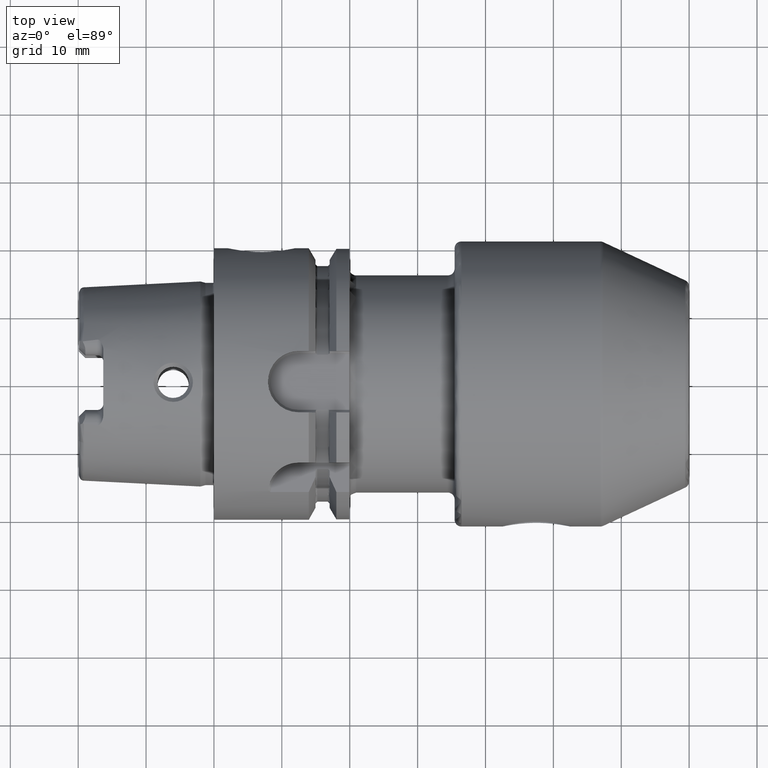
[diagram: clean part render]
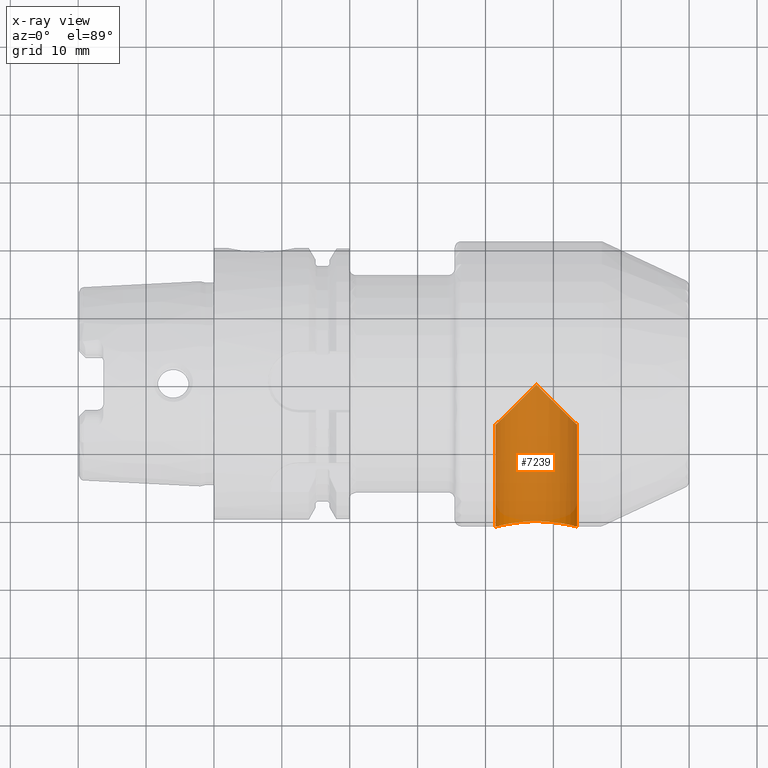
[diagram: x-ray — body ghosted, one internal face saturated and labeled with its STEP entity id]
A machine part, top view, then the same camera in x-ray: the body is ghosted and one INTERNAL B-rep face — a face not visible from any outside direction — is saturated and labeled: STEP entity #7239.
In plain terms, the highlighted cylindrical surface (partial cylindrical patch) has radius 6 mm, axis along (0, -1, 0).
Its self-contained STEP definition (entity closure, byte-faithful):
#7088=CARTESIAN_POINT('',(4.15E1,-6.E0,0.E0));
#7089=CARTESIAN_POINT('',(4.15E1,-6.E0,-2.161451631541E-1));
#7090=CARTESIAN_POINT('',(4.152340133109E1,-5.976598668909E0,
-6.497920179147E-1));
#7091=CARTESIAN_POINT('',(4.162932441133E1,-5.870675588672E0,
-1.295592283440E0));
#7092=CARTESIAN_POINT('',(4.180652120883E1,-5.693478791165E0,
-1.931991815312E0));
#7093=CARTESIAN_POINT('',(4.206045653351E1,-5.439543466488E0,
-2.564011144853E0));
#7094=CARTESIAN_POINT('',(4.240420756610E1,-5.095792433904E0,
-3.195845366612E0));
#7095=CARTESIAN_POINT('',(4.284260782880E1,-4.657392171204E0,
-3.808890337956E0));
#7096=CARTESIAN_POINT('',(4.338304146034E1,-4.116958539658E0,
-4.389750921808E0));
#7097=CARTESIAN_POINT('',(4.402603384219E1,-3.473966157811E0,
-4.916697068376E0));
#7098=CARTESIAN_POINT('',(4.477543681185E1,-2.724563188146E0,
-5.370672820025E0));
#7099=CARTESIAN_POINT('',(4.562484741143E1,-1.875152588572E0,
-5.725725182445E0));
#7100=CARTESIAN_POINT('',(4.656149134178E1,-9.385086582171E-1,
-5.951741638269E0));
#7101=CARTESIAN_POINT('',(4.718569922813E1,-3.143007718668E-1,-6.E0));
#7102=CARTESIAN_POINT('',(4.75E1,0.E0,-6.E0));
#7104=CARTESIAN_POINT('',(4.75E1,0.E0,-6.E0));
#7105=CARTESIAN_POINT('',(4.781425196511E1,-3.142519651054E-1,-6.E0));
#7106=CARTESIAN_POINT('',(4.843839180650E1,-9.383918065036E-1,
-5.951762133287E0));
#7107=CARTESIAN_POINT('',(4.937514506790E1,-1.875145067898E0,
-5.725731005531E0));
#7108=CARTESIAN_POINT('',(5.022450156297E1,-2.724501562965E0,
-5.370697060344E0));
#7109=CARTESIAN_POINT('',(5.097382171810E1,-3.473821718098E0,
-4.916795803800E0));
#7110=CARTESIAN_POINT('',(5.161682019903E1,-4.116820199027E0,
-4.389879787777E0));
#7111=CARTESIAN_POINT('',(5.215726125677E1,-4.657261256768E0,
-3.809051692539E0));
#7112=CARTESIAN_POINT('',(5.259571436474E1,-5.095714364742E0,
-3.195973951291E0));
#7113=CARTESIAN_POINT('',(5.293947464148E1,-5.439474641483E0,
-2.564150110717E0));
#7114=CARTESIAN_POINT('',(5.319340220489E1,-5.693402204893E0,
-1.932216984510E0));
#7115=CARTESIAN_POINT('',(5.337064493388E1,-5.870644933881E0,
-1.295746281412E0));
#7116=CARTESIAN_POINT('',(5.347659026268E1,-5.976590262681E0,
-6.498907744181E-1));
#7117=CARTESIAN_POINT('',(5.35E1,-6.E0,-2.161801310147E-1));
#7118=CARTESIAN_POINT('',(5.35E1,-6.E0,0.E0));
#7120=CARTESIAN_POINT('',(5.35E1,-2.100002048590E1,0.E0));
#7121=CARTESIAN_POINT('',(5.35E1,-2.100002048590E1,-2.805061778721E-1));
#7122=CARTESIAN_POINT('',(5.346072212459E1,-2.098871354245E1,
-8.434564804456E-1));
#7123=CARTESIAN_POINT('',(5.328117249769E1,-2.093813487172E1,
-1.679534072873E0));
#7124=CARTESIAN_POINT('',(5.298529432285E1,-2.085784626535E1,
-2.481626650352E0));
#7125=CARTESIAN_POINT('',(5.257219965868E1,-2.075235055115E1,
-3.243791867424E0));
#7126=CARTESIAN_POINT('',(5.205512916051E1,-2.063119213990E1,
-3.937490752336E0));
#7127=CARTESIAN_POINT('',(5.143497316236E1,-2.050231001015E1,
-4.557315725244E0));
#7128=CARTESIAN_POINT('',(5.074055147089E1,-2.037957923902E1,
-5.074332785039E0));
#7129=CARTESIAN_POINT('',(4.997709865929E1,-2.027149312580E1,
-5.487359716249E0));
#7130=CARTESIAN_POINT('',(4.917584262233E1,-2.018877148924E1,
-5.782106468063E0));
#7131=CARTESIAN_POINT('',(4.834308297048E1,-2.013641690648E1,
-5.960628379927E0));
#7132=CARTESIAN_POINT('',(4.749993223936E1,-2.011870888561E1,
-6.019686967268E0));
#7133=CARTESIAN_POINT('',(4.665689272428E1,-2.013641833641E1,
-5.960623749791E0));
#7134=CARTESIAN_POINT('',(4.582405140409E1,-2.018877991833E1,
-5.782077016514E0));
#7135=CARTESIAN_POINT('',(4.502286467861E1,-2.027149809201E1,
-5.487341589608E0));
#7136=CARTESIAN_POINT('',(4.425937290833E1,-2.037959094515E1,
-5.074286410150E0));
#7137=CARTESIAN_POINT('',(4.356498162690E1,-2.050231911204E1,
-4.557273925251E0));
#7138=CARTESIAN_POINT('',(4.294483286281E1,-2.063120035740E1,
-3.937449935730E0));
#7139=CARTESIAN_POINT('',(4.242774790421E1,-2.075236347389E1,
-3.243708417588E0));
#7140=CARTESIAN_POINT('',(4.201468986940E1,-2.085785055676E1,
-2.481589141498E0));
#7141=CARTESIAN_POINT('',(4.171881170573E1,-2.093813924043E1,
-1.679477226539E0));
#7142=CARTESIAN_POINT('',(4.153928054488E1,-2.098871278432E1,
-8.434586468462E-1));
#7143=CARTESIAN_POINT('',(4.15E1,-2.100002056043E1,-2.805086685423E-1));
#7144=CARTESIAN_POINT('',(4.15E1,-2.100002056043E1,0.E0));
#7146=DIRECTION('',(0.E0,1.E0,0.E0));
#7147=VECTOR('',#7146,1.500002056043E1);
#7148=CARTESIAN_POINT('',(4.15E1,-2.100002056043E1,0.E0));
#7149=LINE('',#7148,#7147);
#7176=DIRECTION('',(0.E0,1.E0,0.E0));
#7177=VECTOR('',#7176,1.500002048590E1);
#7178=CARTESIAN_POINT('',(5.35E1,-2.100002048590E1,0.E0));
#7179=LINE('',#7178,#7177);
#7212=CARTESIAN_POINT('',(4.15E1,-2.100002056043E1,0.E0));
#7213=CARTESIAN_POINT('',(4.15E1,-6.E0,0.E0));
#7214=VERTEX_POINT('',#7212);
#7215=VERTEX_POINT('',#7213);
#7216=CARTESIAN_POINT('',(5.35E1,-2.100002048590E1,0.E0));
#7217=CARTESIAN_POINT('',(5.35E1,-6.E0,0.E0));
#7218=VERTEX_POINT('',#7216);
#7219=VERTEX_POINT('',#7217);
#7220=VERTEX_POINT('',#7102);
#7222=CARTESIAN_POINT('',(4.75E1,4.267608614893E0,0.E0));
#7223=DIRECTION('',(0.E0,-1.E0,0.E0));
#7224=DIRECTION('',(-1.E0,0.E0,0.E0));
#7225=AXIS2_PLACEMENT_3D('',#7222,#7223,#7224);
#7226=CYLINDRICAL_SURFACE('',#7225,6.E0);
#7228=ORIENTED_EDGE('',*,*,#7227,.T.);
#7230=ORIENTED_EDGE('',*,*,#7229,.T.);
#7232=ORIENTED_EDGE('',*,*,#7231,.T.);
#7234=ORIENTED_EDGE('',*,*,#7233,.F.);
#7236=ORIENTED_EDGE('',*,*,#7235,.T.);
#7237=EDGE_LOOP('',(#7228,#7230,#7232,#7234,#7236));
#7238=FACE_OUTER_BOUND('',#7237,.F.);
#7239=ADVANCED_FACE('',(#7238),#7226,.F.);
#7103=B_SPLINE_CURVE_WITH_KNOTS('',3,(#7088,#7089,#7090,#7091,#7092,#7093,#7094,
#7095,#7096,#7097,#7098,#7099,#7100,#7101,#7102),.UNSPECIFIED.,.F.,.F.,(4,1,1,1,
1,1,1,1,1,1,1,1,4),(0.E0,8.333333333333E-2,1.666666666667E-1,2.5E-1,
3.333333333333E-1,4.166666666667E-1,5.E-1,5.833333333333E-1,6.666666666667E-1,
7.5E-1,8.333333333333E-1,9.166666666667E-1,1.E0),.UNSPECIFIED.);
#7119=B_SPLINE_CURVE_WITH_KNOTS('',3,(#7104,#7105,#7106,#7107,#7108,#7109,#7110,
#7111,#7112,#7113,#7114,#7115,#7116,#7117,#7118),.UNSPECIFIED.,.F.,.F.,(4,1,1,1,
1,1,1,1,1,1,1,1,4),(0.E0,8.333333333333E-2,1.666666666667E-1,2.5E-1,
3.333333333333E-1,4.166666666667E-1,5.E-1,5.833333333333E-1,6.666666666667E-1,
7.5E-1,8.333333333333E-1,9.166666666667E-1,1.E0),.UNSPECIFIED.);
#7145=B_SPLINE_CURVE_WITH_KNOTS('',3,(#7120,#7121,#7122,#7123,#7124,#7125,#7126,
#7127,#7128,#7129,#7130,#7131,#7132,#7133,#7134,#7135,#7136,#7137,#7138,#7139,
#7140,#7141,#7142,#7143,#7144),.UNSPECIFIED.,.F.,.F.,(4,1,1,1,1,1,1,1,1,1,1,1,1,
1,1,1,1,1,1,1,1,1,4),(0.E0,4.545454545455E-2,9.090909090909E-2,
1.363636363636E-1,1.818181818182E-1,2.272727272727E-1,2.727272727273E-1,
3.181818181818E-1,3.636363636364E-1,4.090909090909E-1,4.545454545455E-1,5.E-1,
5.454545454545E-1,5.909090909091E-1,6.363636363636E-1,6.818181818182E-1,
7.272727272727E-1,7.727272727273E-1,8.181818181818E-1,8.636363636364E-1,
9.090909090909E-1,9.545454545455E-1,1.E0),.UNSPECIFIED.);
#7227=EDGE_CURVE('',#7214,#7215,#7149,.T.);
#7229=EDGE_CURVE('',#7215,#7220,#7103,.T.);
#7231=EDGE_CURVE('',#7220,#7219,#7119,.T.);
#7233=EDGE_CURVE('',#7218,#7219,#7179,.T.);
#7235=EDGE_CURVE('',#7218,#7214,#7145,.T.);